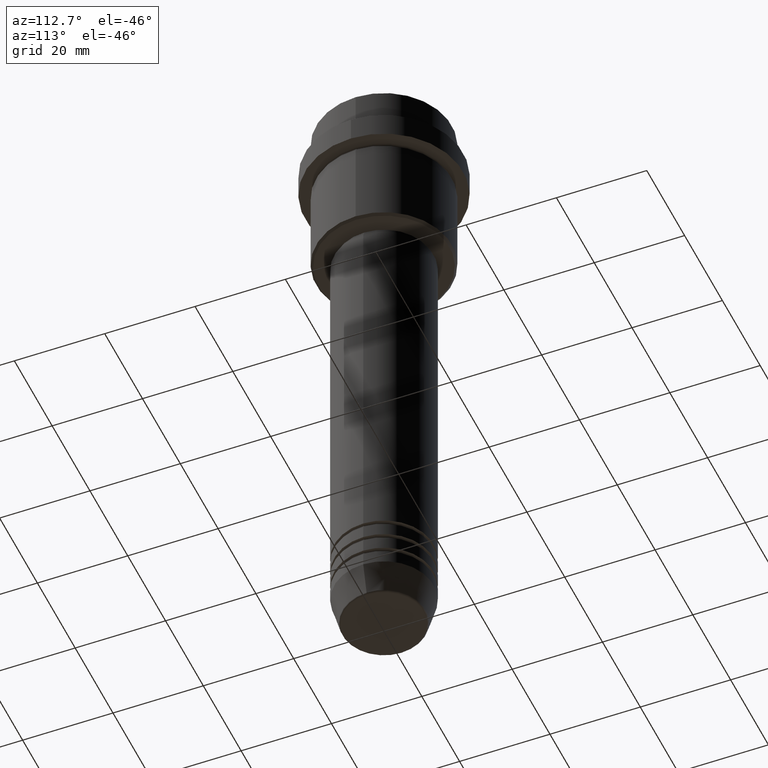
[diagram: clean part render]
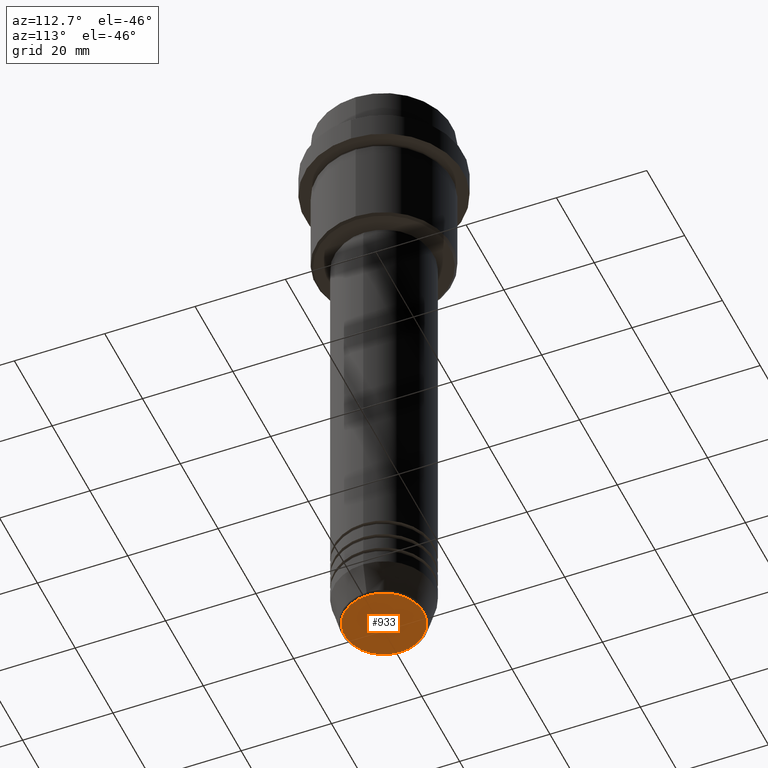
[diagram: same view with one face highlighted and labeled with its STEP entity id]
A machine part, auxiliary view. The second image highlights one B-rep face of the part: STEP entity #933.
In plain terms, the highlighted planar face has unit normal (0, -0, 1).
Its self-contained STEP definition (entity closure, byte-faithful):
#87 = FACE_OUTER_BOUND ( 'NONE', #217, .T. ) ;
#97 = EDGE_CURVE ( 'NONE', #372, #393, #321, .T. ) ;
#217 = EDGE_LOOP ( 'NONE', ( #710, #1009 ) ) ;
#222 = DIRECTION ( 'NONE',  ( 0.000000000000000000, -0.000000000000000000, 1.000000000000000000 ) ) ;
#278 = CARTESIAN_POINT ( 'NONE',  ( 8.740692158992656502, 0.000000000000000000, -141.0000000000000000 ) ) ;
#291 = EDGE_CURVE ( 'NONE', #393, #372, #458, .T. ) ;
#320 = AXIS2_PLACEMENT_3D ( 'NONE', #1205, #222, #549 ) ;
#321 = CIRCLE ( 'NONE', #678, 8.740692158992656502 ) ;
#331 = DIRECTION ( 'NONE',  ( 1.000000000000000000, 0.000000000000000000, 0.000000000000000000 ) ) ;
#372 = VERTEX_POINT ( 'NONE', #278 ) ;
#393 = VERTEX_POINT ( 'NONE', #649 ) ;
#458 = CIRCLE ( 'NONE', #725, 8.740692158992656502 ) ;
#549 = DIRECTION ( 'NONE',  ( 1.000000000000000000, 0.000000000000000000, 0.000000000000000000 ) ) ;
#605 = DIRECTION ( 'NONE',  ( 0.000000000000000000, 0.000000000000000000, -1.000000000000000000 ) ) ;
#649 = CARTESIAN_POINT ( 'NONE',  ( -8.740692158992656502, 1.099999016768739653E-15, -141.0000000000000000 ) ) ;
#678 = AXIS2_PLACEMENT_3D ( 'NONE', #1076, #1310, #331 ) ;
#710 = ORIENTED_EDGE ( 'NONE', *, *, #97, .T. ) ;
#725 = AXIS2_PLACEMENT_3D ( 'NONE', #728, #605, #816 ) ;
#728 = CARTESIAN_POINT ( 'NONE',  ( 0.000000000000000000, 0.000000000000000000, -141.0000000000000000 ) ) ;
#816 = DIRECTION ( 'NONE',  ( 1.000000000000000000, 0.000000000000000000, 0.000000000000000000 ) ) ;
#879 = PLANE ( 'NONE',  #320 ) ;
#933 = ADVANCED_FACE ( 'NONE', ( #87 ), #879, .F. ) ;
#1009 = ORIENTED_EDGE ( 'NONE', *, *, #291, .T. ) ;
#1076 = CARTESIAN_POINT ( 'NONE',  ( 0.000000000000000000, 0.000000000000000000, -141.0000000000000000 ) ) ;
#1205 = CARTESIAN_POINT ( 'NONE',  ( 0.000000000000000000, 0.000000000000000000, -141.0000000000000000 ) ) ;
#1310 = DIRECTION ( 'NONE',  ( 0.000000000000000000, 0.000000000000000000, -1.000000000000000000 ) ) ;